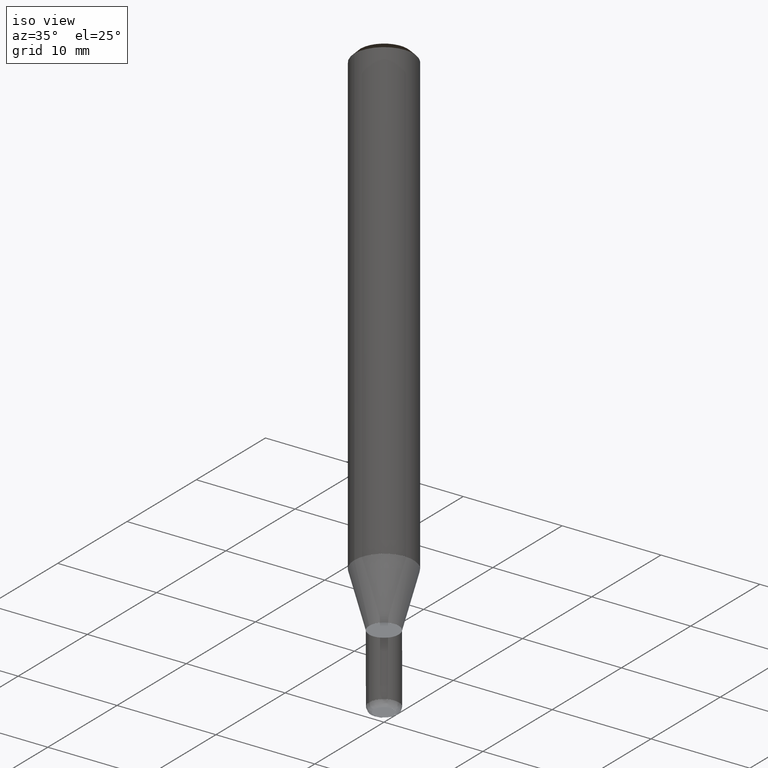
[diagram: clean part render]
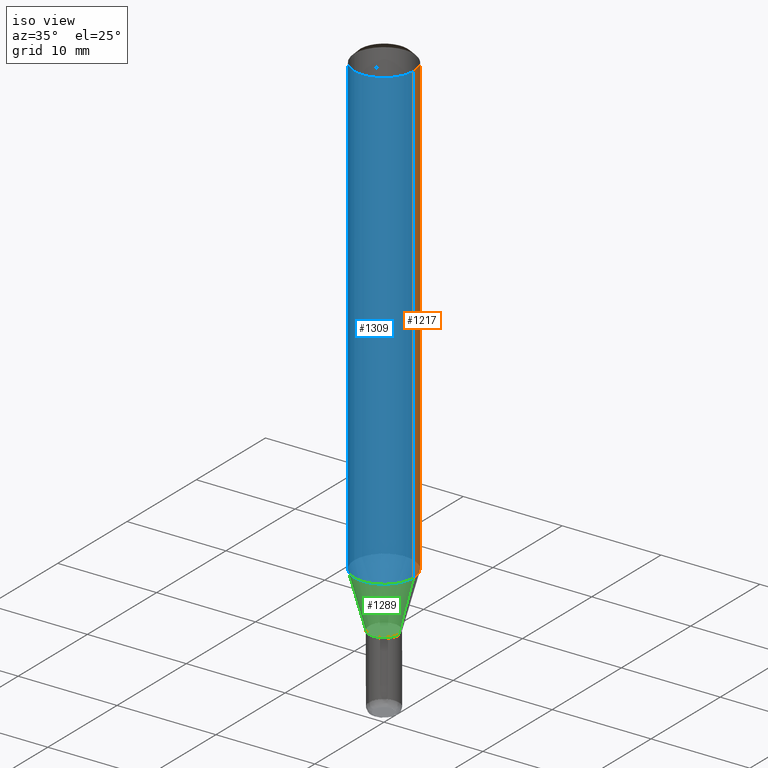
[diagram: same view with three faces highlighted in distinct colors, each labeled with its STEP entity id]
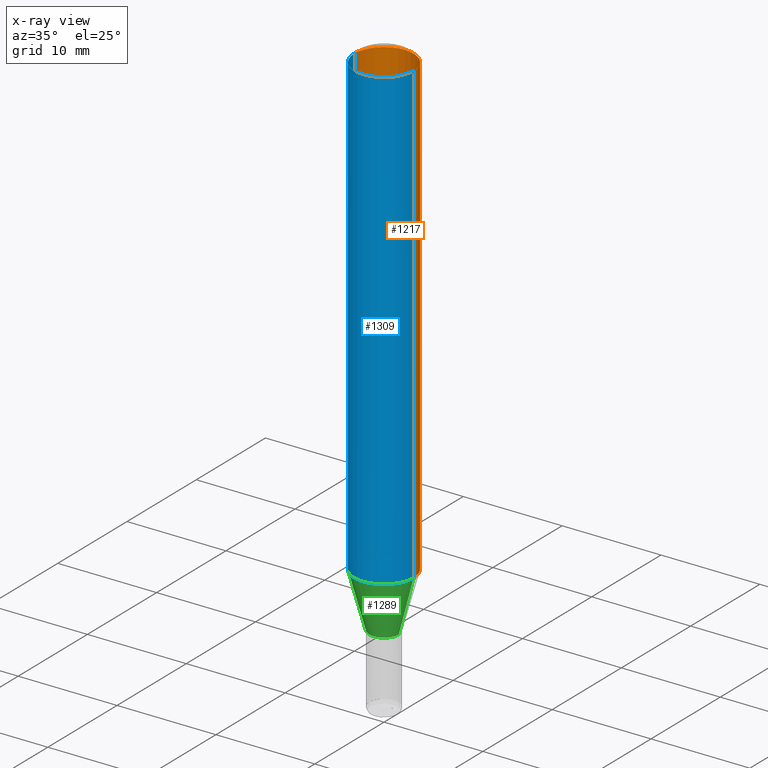
[diagram: x-ray of the same camera — body ghosted, the three highlighted faces saturated]
A machine part, iso view with three faces highlighted in distinct colors.
The next image is the same camera in x-ray (body ghosted, the three faces saturated) — at least one of them is partly hidden behind the body in this view.
Their STEP definitions:

[orange] entity #1217 — the highlighted face is a freeform B-spline surface patch.
#980=CARTESIAN_POINT('',(3.0,0.0,-0.0));
#981=CARTESIAN_POINT('',(3.0,3.0,-0.0));
#982=CARTESIAN_POINT('',(0.0,3.0,-0.0));
#983=CARTESIAN_POINT('',(-3.0,3.0,-0.0));
#984=CARTESIAN_POINT('',(-3.0,0.0,-0.0));
#985=CARTESIAN_POINT('',(3.0,0.0,46.301923788647));
#986=CARTESIAN_POINT('',(3.0,3.0,46.301923788647));
#987=CARTESIAN_POINT('',(0.0,3.0,46.301923788647));
#988=CARTESIAN_POINT('',(-3.0,3.0,46.301923788647));
#989=CARTESIAN_POINT('',(-3.0,0.0,46.301923788647));
#1198=(
BOUNDED_SURFACE()
B_SPLINE_SURFACE(1,2,(
(#980,#981,#982,#983,#984),
(#985,#986,#987,#988,#989)
), .UNSPECIFIED.,.F.,.F.,.F.)
B_SPLINE_SURFACE_WITH_KNOTS((2,2),(3,2,3),(
0.0,1.0),(
0.0,0.5,1.0), .UNSPECIFIED.)
GEOMETRIC_REPRESENTATION_ITEM()
RATIONAL_B_SPLINE_SURFACE(((1.0,0.707106781187,1.0,0.707106781187,1.0),
(1.0,0.707106781187,1.0,0.707106781187,1.0)
))
REPRESENTATION_ITEM('')
SURFACE()
);
#1199=(
BOUNDED_CURVE()
B_SPLINE_CURVE(2,(#985,#986,#987,#988,#989),.UNSPECIFIED.,.F.,.F.)
B_SPLINE_CURVE_WITH_KNOTS((3,2,3),
(0.0,0.5,1.0),.UNSPECIFIED.)
CURVE()
GEOMETRIC_REPRESENTATION_ITEM()
RATIONAL_B_SPLINE_CURVE((1.0,0.707106781187,1.0,0.707106781187,1.0))
REPRESENTATION_ITEM('')
);
#1200=(
BOUNDED_CURVE()
B_SPLINE_CURVE(1,(#989,#984),.UNSPECIFIED.,.F.,.F.)
B_SPLINE_CURVE_WITH_KNOTS((2,2),
(0.0,1.0),.UNSPECIFIED.)
CURVE()
GEOMETRIC_REPRESENTATION_ITEM()
RATIONAL_B_SPLINE_CURVE((1.0,1.0))
REPRESENTATION_ITEM('')
);
#1201=(
BOUNDED_CURVE()
B_SPLINE_CURVE(2,(#984,#983,#982,#981,#980),.UNSPECIFIED.,.F.,.F.)
B_SPLINE_CURVE_WITH_KNOTS((3,2,3),
(0.0,0.5,1.0),.UNSPECIFIED.)
CURVE()
GEOMETRIC_REPRESENTATION_ITEM()
RATIONAL_B_SPLINE_CURVE((1.0,0.707106781187,1.0,0.707106781187,1.0))
REPRESENTATION_ITEM('')
);
#1202=(
BOUNDED_CURVE()
B_SPLINE_CURVE(1,(#980,#985),.UNSPECIFIED.,.F.,.F.)
B_SPLINE_CURVE_WITH_KNOTS((2,2),
(0.0,1.0),.UNSPECIFIED.)
CURVE()
GEOMETRIC_REPRESENTATION_ITEM()
RATIONAL_B_SPLINE_CURVE((1.0,1.0))
REPRESENTATION_ITEM('')
);
#1203=VERTEX_POINT('',#980);
#1204=VERTEX_POINT('',#984);
#1205=VERTEX_POINT('',#985);
#1206=VERTEX_POINT('',#989);
#1207=EDGE_CURVE('',#1205,#1206,#1199,.T.);
#1208=EDGE_CURVE('',#1206,#1204,#1200,.T.);
#1209=EDGE_CURVE('',#1204,#1203,#1201,.T.);
#1210=EDGE_CURVE('',#1203,#1205,#1202,.T.);
#1211=ORIENTED_EDGE('',*,*,#1207,.T.);
#1212=ORIENTED_EDGE('',*,*,#1208,.T.);
#1213=ORIENTED_EDGE('',*,*,#1209,.T.);
#1214=ORIENTED_EDGE('',*,*,#1210,.T.);
#1215=EDGE_LOOP('',(#1211,#1212,#1213,#1214));
#1216=FACE_OUTER_BOUND('',#1215,.T.);
#1217=ADVANCED_FACE('',(#1216),#1198,.T.);

[blue] entity #1309 — the highlighted face is a freeform B-spline surface patch.
#980=CARTESIAN_POINT('',(3.0,0.0,-0.0));
#984=CARTESIAN_POINT('',(-3.0,0.0,-0.0));
#985=CARTESIAN_POINT('',(3.0,0.0,46.301923788647));
#989=CARTESIAN_POINT('',(-3.0,0.0,46.301923788647));
#996=CARTESIAN_POINT('',(-3.0,-3.0,-0.0));
#997=CARTESIAN_POINT('',(0.0,-3.0,-0.0));
#998=CARTESIAN_POINT('',(3.0,-3.0,-0.0));
#999=CARTESIAN_POINT('',(-3.0,-3.0,46.301923788647));
#1000=CARTESIAN_POINT('',(0.0,-3.0,46.301923788647));
#1001=CARTESIAN_POINT('',(3.0,-3.0,46.301923788647));
#1290=(
BOUNDED_SURFACE()
B_SPLINE_SURFACE(1,2,(
(#984,#996,#997,#998,#980),
(#989,#999,#1000,#1001,#985)
), .UNSPECIFIED.,.F.,.F.,.F.)
B_SPLINE_SURFACE_WITH_KNOTS((2,2),(3,2,3),(
0.0,1.0),(
0.0,0.5,1.0), .UNSPECIFIED.)
GEOMETRIC_REPRESENTATION_ITEM()
RATIONAL_B_SPLINE_SURFACE(((1.0,0.707106781187,1.0,0.707106781187,1.0),
(1.0,0.707106781187,1.0,0.707106781187,1.0)
))
REPRESENTATION_ITEM('')
SURFACE()
);
#1291=(
BOUNDED_CURVE()
B_SPLINE_CURVE(1,(#989,#984),.UNSPECIFIED.,.F.,.F.)
B_SPLINE_CURVE_WITH_KNOTS((2,2),
(0.0,1.0),.UNSPECIFIED.)
CURVE()
GEOMETRIC_REPRESENTATION_ITEM()
RATIONAL_B_SPLINE_CURVE((1.0,1.0))
REPRESENTATION_ITEM('')
);
#1292=(
BOUNDED_CURVE()
B_SPLINE_CURVE(2,(#984,#996,#997,#998,#980),.UNSPECIFIED.,.F.,.F.)
B_SPLINE_CURVE_WITH_KNOTS((3,2,3),
(0.0,0.5,1.0),.UNSPECIFIED.)
CURVE()
GEOMETRIC_REPRESENTATION_ITEM()
RATIONAL_B_SPLINE_CURVE((1.0,0.707106781187,1.0,0.707106781187,1.0))
REPRESENTATION_ITEM('')
);
#1293=(
BOUNDED_CURVE()
B_SPLINE_CURVE(1,(#980,#985),.UNSPECIFIED.,.F.,.F.)
B_SPLINE_CURVE_WITH_KNOTS((2,2),
(0.0,1.0),.UNSPECIFIED.)
CURVE()
GEOMETRIC_REPRESENTATION_ITEM()
RATIONAL_B_SPLINE_CURVE((1.0,1.0))
REPRESENTATION_ITEM('')
);
#1294=(
BOUNDED_CURVE()
B_SPLINE_CURVE(2,(#985,#1001,#1000,#999,#989),.UNSPECIFIED.,.F.,.F.)
B_SPLINE_CURVE_WITH_KNOTS((3,2,3),
(0.0,0.5,1.0),.UNSPECIFIED.)
CURVE()
GEOMETRIC_REPRESENTATION_ITEM()
RATIONAL_B_SPLINE_CURVE((1.0,0.707106781187,1.0,0.707106781187,1.0))
REPRESENTATION_ITEM('')
);
#1295=VERTEX_POINT('',#980);
#1296=VERTEX_POINT('',#984);
#1297=VERTEX_POINT('',#985);
#1298=VERTEX_POINT('',#989);
#1299=EDGE_CURVE('',#1298,#1296,#1291,.T.);
#1300=EDGE_CURVE('',#1296,#1295,#1292,.T.);
#1301=EDGE_CURVE('',#1295,#1297,#1293,.T.);
#1302=EDGE_CURVE('',#1297,#1298,#1294,.T.);
#1303=ORIENTED_EDGE('',*,*,#1299,.T.);
#1304=ORIENTED_EDGE('',*,*,#1300,.T.);
#1305=ORIENTED_EDGE('',*,*,#1301,.T.);
#1306=ORIENTED_EDGE('',*,*,#1302,.T.);
#1307=EDGE_LOOP('',(#1303,#1304,#1305,#1306));
#1308=FACE_OUTER_BOUND('',#1307,.T.);
#1309=ADVANCED_FACE('',(#1308),#1290,.T.);

[green] entity #1289 — the highlighted face is a freeform B-spline surface patch.
#956=CARTESIAN_POINT('',(1.5,0.0,-5.598076211353));
#960=CARTESIAN_POINT('',(-1.5,0.0,-5.598076211353));
#977=CARTESIAN_POINT('',(-1.5,-1.5,-5.598076211353));
#978=CARTESIAN_POINT('',(0.0,-1.5,-5.598076211353));
#979=CARTESIAN_POINT('',(1.5,-1.5,-5.598076211353));
#980=CARTESIAN_POINT('',(3.0,0.0,-0.0));
#984=CARTESIAN_POINT('',(-3.0,0.0,-0.0));
#996=CARTESIAN_POINT('',(-3.0,-3.0,-0.0));
#997=CARTESIAN_POINT('',(0.0,-3.0,-0.0));
#998=CARTESIAN_POINT('',(3.0,-3.0,-0.0));
#1270=(
BOUNDED_SURFACE()
B_SPLINE_SURFACE(1,2,(
(#960,#977,#978,#979,#956),
(#984,#996,#997,#998,#980)
), .UNSPECIFIED.,.F.,.F.,.F.)
B_SPLINE_SURFACE_WITH_KNOTS((2,2),(3,2,3),(
0.0,1.0),(
0.0,0.5,1.0), .UNSPECIFIED.)
GEOMETRIC_REPRESENTATION_ITEM()
RATIONAL_B_SPLINE_SURFACE(((1.0,0.707106781187,1.0,0.707106781187,1.0),
(1.0,0.707106781187,1.0,0.707106781187,1.0)
))
REPRESENTATION_ITEM('')
SURFACE()
);
#1271=(
BOUNDED_CURVE()
B_SPLINE_CURVE(1,(#984,#960),.UNSPECIFIED.,.F.,.F.)
B_SPLINE_CURVE_WITH_KNOTS((2,2),
(0.0,1.0),.UNSPECIFIED.)
CURVE()
GEOMETRIC_REPRESENTATION_ITEM()
RATIONAL_B_SPLINE_CURVE((1.0,1.0))
REPRESENTATION_ITEM('')
);
#1272=(
BOUNDED_CURVE()
B_SPLINE_CURVE(2,(#960,#977,#978,#979,#956),.UNSPECIFIED.,.F.,.F.)
B_SPLINE_CURVE_WITH_KNOTS((3,2,3),
(0.0,0.5,1.0),.UNSPECIFIED.)
CURVE()
GEOMETRIC_REPRESENTATION_ITEM()
RATIONAL_B_SPLINE_CURVE((1.0,0.707106781187,1.0,0.707106781187,1.0))
REPRESENTATION_ITEM('')
);
#1273=(
BOUNDED_CURVE()
B_SPLINE_CURVE(1,(#956,#980),.UNSPECIFIED.,.F.,.F.)
B_SPLINE_CURVE_WITH_KNOTS((2,2),
(0.0,1.0),.UNSPECIFIED.)
CURVE()
GEOMETRIC_REPRESENTATION_ITEM()
RATIONAL_B_SPLINE_CURVE((1.0,1.0))
REPRESENTATION_ITEM('')
);
#1274=(
BOUNDED_CURVE()
B_SPLINE_CURVE(2,(#980,#998,#997,#996,#984),.UNSPECIFIED.,.F.,.F.)
B_SPLINE_CURVE_WITH_KNOTS((3,2,3),
(0.0,0.5,1.0),.UNSPECIFIED.)
CURVE()
GEOMETRIC_REPRESENTATION_ITEM()
RATIONAL_B_SPLINE_CURVE((1.0,0.707106781187,1.0,0.707106781187,1.0))
REPRESENTATION_ITEM('')
);
#1275=VERTEX_POINT('',#956);
#1276=VERTEX_POINT('',#960);
#1277=VERTEX_POINT('',#980);
#1278=VERTEX_POINT('',#984);
#1279=EDGE_CURVE('',#1278,#1276,#1271,.T.);
#1280=EDGE_CURVE('',#1276,#1275,#1272,.T.);
#1281=EDGE_CURVE('',#1275,#1277,#1273,.T.);
#1282=EDGE_CURVE('',#1277,#1278,#1274,.T.);
#1283=ORIENTED_EDGE('',*,*,#1279,.T.);
#1284=ORIENTED_EDGE('',*,*,#1280,.T.);
#1285=ORIENTED_EDGE('',*,*,#1281,.T.);
#1286=ORIENTED_EDGE('',*,*,#1282,.T.);
#1287=EDGE_LOOP('',(#1283,#1284,#1285,#1286));
#1288=FACE_OUTER_BOUND('',#1287,.T.);
#1289=ADVANCED_FACE('',(#1288),#1270,.T.);